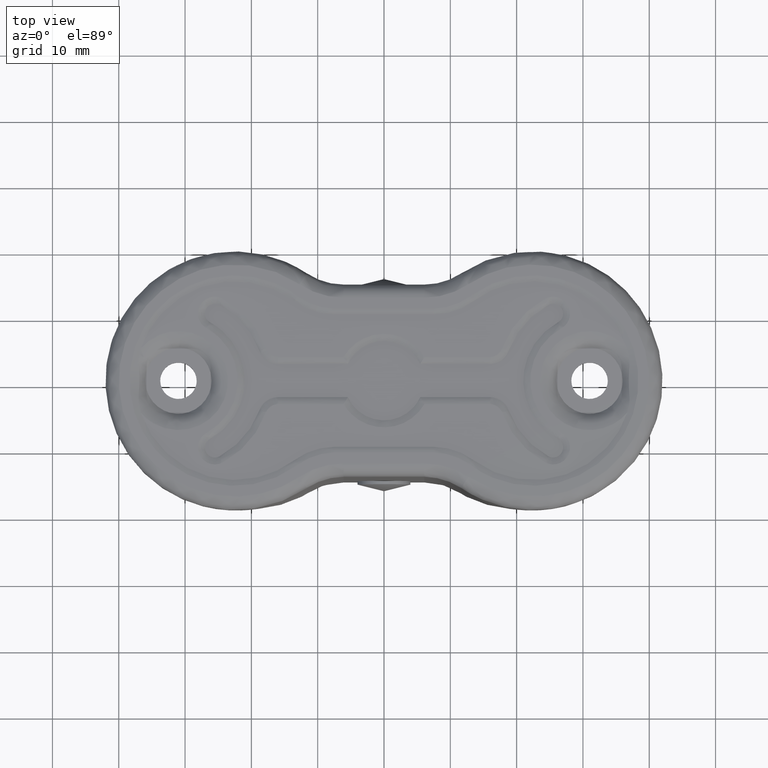
[diagram: clean part render]
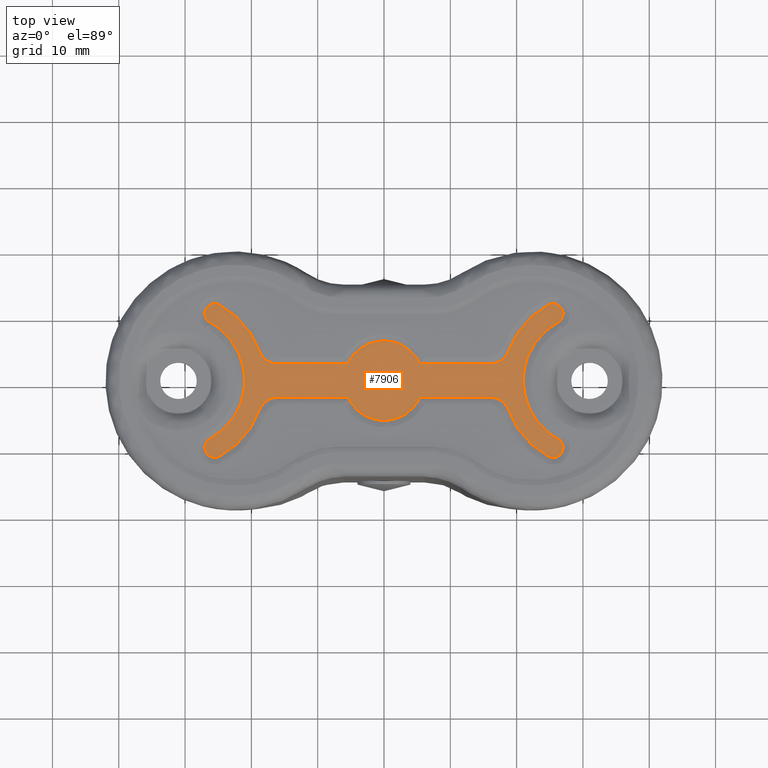
[diagram: same view with one face highlighted and labeled with its STEP entity id]
A machine part, top view. The second image highlights one B-rep face of the part: STEP entity #7906.
In plain terms, the highlighted face is a freeform B-spline surface patch.
Its self-contained STEP definition (entity closure, byte-faithful):
#6530=CARTESIAN_POINT('',(-15.975021000000201,-2.499999999999885,-0.499999999999945));
#6531=VERTEX_POINT('',#6530);
#6545=CARTESIAN_POINT('',(-18.792204415471549,-4.468750045187935,-0.499999999999945));
#6546=VERTEX_POINT('',#6545);
#6547=CARTESIAN_POINT('',(-15.975021000000201,-2.499999999999889,-0.499999999999945));
#6548=CARTESIAN_POINT('',(-18.071529710076202,-2.499999999999889,-0.499999999999945));
#6549=CARTESIAN_POINT('',(-18.792204415471549,-4.468750045187935,-0.499999999999945));
#6557=(BOUNDED_CURVE()B_SPLINE_CURVE(2,(#6547,#6548,#6549),.UNSPECIFIED.,.F.,.U.)CURVE()GEOMETRIC_REPRESENTATION_ITEM()QUASI_UNIFORM_CURVE()RATIONAL_B_SPLINE_CURVE((1.0,0.819679817550479,1.0))REPRESENTATION_ITEM(''));
#6558=EDGE_CURVE('',#6531,#6546,#6557,.T.);
#6608=CARTESIAN_POINT('',(-24.782608698924300,-11.416831732872399,-0.499999999999945));
#6609=VERTEX_POINT('',#6608);
#6639=CARTESIAN_POINT('',(-24.782608698924300,-11.416831732872399,-0.499999999999945));
#6640=CARTESIAN_POINT('',(-20.477356396820230,-9.072272441639816,-0.499999999999945));
#6641=CARTESIAN_POINT('',(-18.792204415471531,-4.468750045187944,-0.499999999999945));
#6649=(BOUNDED_CURVE()B_SPLINE_CURVE(2,(#6639,#6640,#6641),.UNSPECIFIED.,.F.,.U.)CURVE()GEOMETRIC_REPRESENTATION_ITEM()QUASI_UNIFORM_CURVE()RATIONAL_B_SPLINE_CURVE((1.0,0.935682532368448,1.0))REPRESENTATION_ITEM(''));
#6650=EDGE_CURVE('',#6609,#6546,#6649,.T.);
#6671=CARTESIAN_POINT('',(-5.454356000000099,-2.499999999999885,-0.499999999999945));
#6672=VERTEX_POINT('',#6671);
#6692=CARTESIAN_POINT('',(-15.975021000000201,-2.499999999999885,-0.499999999999945));
#6693=CARTESIAN_POINT('',(-5.454356000000099,-2.499999999999885,-0.499999999999945));
#6694=QUASI_UNIFORM_CURVE('',1,(#6692,#6693),.UNSPECIFIED.,.F.,.U.);
#6695=EDGE_CURVE('',#6531,#6672,#6694,.T.);
#6729=CARTESIAN_POINT('',(-26.217391326160602,-8.782178219150209,-0.499999999999945));
#6730=VERTEX_POINT('',#6729);
#6764=CARTESIAN_POINT('',(-26.217391326160602,-8.782178219150209,-0.499999999999945));
#6765=CARTESIAN_POINT('',(-26.977950244537862,-9.196364327112828,-0.499999999999945));
#6766=CARTESIAN_POINT('',(-26.999534066274698,-10.062120724138950,-0.499999999999945));
#6767=CARTESIAN_POINT('',(-27.021117888011542,-10.927877121165059,-0.499999999999945));
#6768=CARTESIAN_POINT('',(-26.282142765474589,-11.379447457462620,-0.499999999999945));
#6769=CARTESIAN_POINT('',(-25.543167642937629,-11.831017793760187,-0.499999999999945));
#6770=CARTESIAN_POINT('',(-24.782608698924300,-11.416831732872399,-0.499999999999945));
#6778=(BOUNDED_CURVE()B_SPLINE_CURVE(2,(#6764,#6765,#6766,#6767,#6768,#6769,#6770),.UNSPECIFIED.,.F.,.U.)B_SPLINE_CURVE_WITH_KNOTS((3,2,2,3),(0.0,0.333333333333333,0.666666666666667,1.0),.UNSPECIFIED.)CURVE()GEOMETRIC_REPRESENTATION_ITEM()RATIONAL_B_SPLINE_CURVE((1.0,0.866025403733573,1.0,0.866025403733573,1.0,0.866025403733573,1.0))REPRESENTATION_ITEM(''));
#6779=EDGE_CURVE('',#6730,#6609,#6778,.T.);
#6809=CARTESIAN_POINT('',(5.454356072683910,-2.499999966475225,-0.499999999999945));
#6810=VERTEX_POINT('',#6809);
#6830=CARTESIAN_POINT('',(-5.454356000000099,-2.499999999999885,-0.499999999999945));
#6831=CARTESIAN_POINT('',(-3.850133661724979,-6.000000019494776,-0.499999999999945));
#6832=CARTESIAN_POINT('',(0.000000030380415,-6.0,-0.499999999999945));
#6833=CARTESIAN_POINT('',(3.850133722485808,-5.999999980505224,-0.499999999999945));
#6834=CARTESIAN_POINT('',(5.454356072683912,-2.499999966475225,-0.499999999999945));
#6842=(BOUNDED_CURVE()B_SPLINE_CURVE(2,(#6830,#6831,#6832,#6833,#6834),.UNSPECIFIED.,.F.,.U.)B_SPLINE_CURVE_WITH_KNOTS((3,2,3),(0.0,0.500000000000000,1.0),.UNSPECIFIED.)CURVE()GEOMETRIC_REPRESENTATION_ITEM()RATIONAL_B_SPLINE_CURVE((1.0,0.841625411237724,1.0,0.841625411237724,1.0))REPRESENTATION_ITEM(''));
#6843=EDGE_CURVE('',#6672,#6810,#6842,.T.);
#6887=CARTESIAN_POINT('',(-26.217391301076098,8.782178267127490,-0.499999999999945));
#6888=VERTEX_POINT('',#6887);
#6920=CARTESIAN_POINT('',(-26.217391326160609,-8.782178219150204,-0.499999999999945));
#6921=CARTESIAN_POINT('',(-20.999999999727905,-5.940885274513746,-0.499999999999945));
#6922=CARTESIAN_POINT('',(-21.0,4.579969E-010,-0.499999999999945));
#6923=CARTESIAN_POINT('',(-21.000000000272088,5.940885275429739,-0.499999999999945));
#6924=CARTESIAN_POINT('',(-26.217391301076098,8.782178267127490,-0.499999999999945));
#6932=(BOUNDED_CURVE()B_SPLINE_CURVE(2,(#6920,#6921,#6922,#6923,#6924),.UNSPECIFIED.,.F.,.U.)B_SPLINE_CURVE_WITH_KNOTS((3,2,3),(0.0,0.500000000000000,1.0),.UNSPECIFIED.)CURVE()GEOMETRIC_REPRESENTATION_ITEM()RATIONAL_B_SPLINE_CURVE((1.0,0.859726952975105,1.0,0.859726952975105,1.0))REPRESENTATION_ITEM(''));
#6933=EDGE_CURVE('',#6730,#6888,#6932,.T.);
#6954=CARTESIAN_POINT('',(15.975020999999900,-2.499999999999885,-0.499999999999945));
#6955=VERTEX_POINT('',#6954);
#6969=CARTESIAN_POINT('',(5.454356072683910,-2.499999966475225,-0.499999999999945));
#6970=CARTESIAN_POINT('',(15.975020999999900,-2.499999999999885,-0.499999999999945));
#6971=QUASI_UNIFORM_CURVE('',1,(#6969,#6970),.UNSPECIFIED.,.F.,.U.);
#6972=EDGE_CURVE('',#6810,#6955,#6971,.T.);
#7006=CARTESIAN_POINT('',(-24.782608698924300,11.416831732872540,-0.499999999999945));
#7007=VERTEX_POINT('',#7006);
#7039=CARTESIAN_POINT('',(-24.782608698924300,11.416831732872540,-0.499999999999945));
#7040=CARTESIAN_POINT('',(-26.099935431796705,12.134223033948304,-0.499999999999945));
#7041=CARTESIAN_POINT('',(-26.817326732872530,10.816896301075930,-0.499999999999945));
#7042=CARTESIAN_POINT('',(-27.534718033948355,9.499569568203548,-0.499999999999945));
#7043=CARTESIAN_POINT('',(-26.217391301076059,8.782178267127572,-0.499999999999945));
#7051=(BOUNDED_CURVE()B_SPLINE_CURVE(2,(#7039,#7040,#7041,#7042,#7043),.UNSPECIFIED.,.F.,.U.)B_SPLINE_CURVE_WITH_KNOTS((3,2,3),(0.0,0.500000000000000,1.0),.UNSPECIFIED.)CURVE()GEOMETRIC_REPRESENTATION_ITEM()RATIONAL_B_SPLINE_CURVE((1.0,0.707106781186589,1.0,0.707106781186589,1.0))REPRESENTATION_ITEM(''));
#7052=EDGE_CURVE('',#7007,#6888,#7051,.T.);
#7092=CARTESIAN_POINT('',(18.792204596429549,-4.468749989571904,-0.499999999999945));
#7093=VERTEX_POINT('',#7092);
#7107=CARTESIAN_POINT('',(18.792204596429549,-4.468749989571905,-0.499999999999945));
#7108=CARTESIAN_POINT('',(18.071529717501068,-2.499999999999890,-0.499999999999945));
#7109=CARTESIAN_POINT('',(15.975020999999900,-2.499999999999889,-0.499999999999945));
#7117=(BOUNDED_CURVE()B_SPLINE_CURVE(2,(#7107,#7108,#7109),.UNSPECIFIED.,.F.,.U.)CURVE()GEOMETRIC_REPRESENTATION_ITEM()QUASI_UNIFORM_CURVE()RATIONAL_B_SPLINE_CURVE((1.0,0.819679816597919,1.0))REPRESENTATION_ITEM(''));
#7118=EDGE_CURVE('',#7093,#6955,#7117,.T.);
#7154=CARTESIAN_POINT('',(-18.792204596429851,4.468749989572130,-0.499999999999945));
#7155=VERTEX_POINT('',#7154);
#7185=CARTESIAN_POINT('',(-18.792204596429851,4.468749989572130,-0.499999999999945));
#7186=CARTESIAN_POINT('',(-20.477356401824601,9.072272444365131,-0.499999999999945));
#7187=CARTESIAN_POINT('',(-24.782608698924300,11.416831732872540,-0.499999999999945));
#7195=(BOUNDED_CURVE()B_SPLINE_CURVE(2,(#7185,#7186,#7187),.UNSPECIFIED.,.F.,.U.)CURVE()GEOMETRIC_REPRESENTATION_ITEM()QUASI_UNIFORM_CURVE()RATIONAL_B_SPLINE_CURVE((1.0,0.935682532503854,1.0))REPRESENTATION_ITEM(''));
#7196=EDGE_CURVE('',#7155,#7007,#7195,.T.);
#7220=CARTESIAN_POINT('',(24.782608724008849,-11.416831684895280,-0.499999999999945));
#7221=VERTEX_POINT('',#7220);
#7235=CARTESIAN_POINT('',(18.792204596429549,-4.468749989571904,-0.499999999999945));
#7236=CARTESIAN_POINT('',(20.477356401644627,-9.072272443873823,-0.499999999999945));
#7237=CARTESIAN_POINT('',(24.782608724008838,-11.416831684895291,-0.499999999999945));
#7245=(BOUNDED_CURVE()B_SPLINE_CURVE(2,(#7235,#7236,#7237),.UNSPECIFIED.,.F.,.U.)CURVE()GEOMETRIC_REPRESENTATION_ITEM()QUASI_UNIFORM_CURVE()RATIONAL_B_SPLINE_CURVE((1.0,0.935682532516280,1.0))REPRESENTATION_ITEM(''));
#7246=EDGE_CURVE('',#7093,#7221,#7245,.T.);
#7298=CARTESIAN_POINT('',(-15.975021000000201,2.500000000000115,-0.499999999999945));
#7299=VERTEX_POINT('',#7298);
#7329=CARTESIAN_POINT('',(-18.792204596429851,4.468749989572130,-0.499999999999945));
#7330=CARTESIAN_POINT('',(-18.071529717501374,2.500000000000110,-0.499999999999945));
#7331=CARTESIAN_POINT('',(-15.975021000000201,2.500000000000110,-0.499999999999945));
#7339=(BOUNDED_CURVE()B_SPLINE_CURVE(2,(#7329,#7330,#7331),.UNSPECIFIED.,.F.,.U.)CURVE()GEOMETRIC_REPRESENTATION_ITEM()QUASI_UNIFORM_CURVE()RATIONAL_B_SPLINE_CURVE((1.0,0.819679816597918,1.0))REPRESENTATION_ITEM(''));
#7340=EDGE_CURVE('',#7155,#7299,#7339,.T.);
#7370=CARTESIAN_POINT('',(26.217391301075899,-8.782178267127351,-0.499999999999945));
#7371=VERTEX_POINT('',#7370);
#7385=CARTESIAN_POINT('',(24.782608724008849,-11.416831684895280,-0.499999999999945));
#7386=CARTESIAN_POINT('',(25.543167641880409,-11.831017793786561,-0.499999999999945));
#7387=CARTESIAN_POINT('',(26.282142764693109,-11.379447457940170,-0.499999999999945));
#7388=CARTESIAN_POINT('',(27.021117887505795,-10.927877122093779,-0.499999999999945));
#7389=CARTESIAN_POINT('',(26.999534066297532,-10.062120725054459,-0.499999999999945));
#7390=CARTESIAN_POINT('',(26.977950245089254,-9.196364328015138,-0.499999999999945));
#7391=CARTESIAN_POINT('',(26.217391301075899,-8.782178267127348,-0.499999999999945));
#7399=(BOUNDED_CURVE()B_SPLINE_CURVE(2,(#7385,#7386,#7387,#7388,#7389,#7390,#7391),.UNSPECIFIED.,.F.,.U.)B_SPLINE_CURVE_WITH_KNOTS((3,2,2,3),(0.0,0.333333333333333,0.666666666666667,1.0),.UNSPECIFIED.)CURVE()GEOMETRIC_REPRESENTATION_ITEM()RATIONAL_B_SPLINE_CURVE((1.0,0.866025403733566,1.0,0.866025403733566,1.0,0.866025403733566,1.0))REPRESENTATION_ITEM(''));
#7400=EDGE_CURVE('',#7221,#7371,#7399,.T.);
#7445=CARTESIAN_POINT('',(-5.454356072683920,2.499999966475220,-0.499999999999945));
#7446=VERTEX_POINT('',#7445);
#7447=CARTESIAN_POINT('',(-5.454356072683920,2.499999966475220,-0.499999999999945));
#7448=CARTESIAN_POINT('',(-15.975021000000201,2.500000000000115,-0.499999999999945));
#7449=QUASI_UNIFORM_CURVE('',1,(#7447,#7448),.UNSPECIFIED.,.F.,.U.);
#7450=EDGE_CURVE('',#7446,#7299,#7449,.T.);
#7499=CARTESIAN_POINT('',(26.217391326160651,8.782178219150220,-0.499999999999945));
#7500=VERTEX_POINT('',#7499);
#7514=CARTESIAN_POINT('',(26.217391326160651,8.782178219150223,-0.499999999999945));
#7515=CARTESIAN_POINT('',(20.999999999727997,5.940885274513822,-0.499999999999945));
#7516=CARTESIAN_POINT('',(21.0,-4.578535E-010,-0.499999999999945));
#7517=CARTESIAN_POINT('',(21.000000000272010,-5.940885275429531,-0.499999999999945));
#7518=CARTESIAN_POINT('',(26.217391301075899,-8.782178267127351,-0.499999999999945));
#7526=(BOUNDED_CURVE()B_SPLINE_CURVE(2,(#7514,#7515,#7516,#7517,#7518),.UNSPECIFIED.,.F.,.U.)B_SPLINE_CURVE_WITH_KNOTS((3,2,3),(0.0,0.500000000000000,1.0),.UNSPECIFIED.)CURVE()GEOMETRIC_REPRESENTATION_ITEM()RATIONAL_B_SPLINE_CURVE((1.0,0.859726952975107,1.0,0.859726952975107,1.0))REPRESENTATION_ITEM(''));
#7527=EDGE_CURVE('',#7500,#7371,#7526,.T.);
#7589=CARTESIAN_POINT('',(5.454356000000000,2.500000000000115,-0.499999999999945));
#7590=VERTEX_POINT('',#7589);
#7591=CARTESIAN_POINT('',(5.454356000000000,2.500000000000115,-0.499999999999945));
#7592=CARTESIAN_POINT('',(3.850133661724768,6.000000019494856,-0.499999999999945));
#7593=CARTESIAN_POINT('',(-0.000000030380540,6.0,-0.499999999999945));
#7594=CARTESIAN_POINT('',(-3.850133722485848,5.999999980505145,-0.499999999999945));
#7595=CARTESIAN_POINT('',(-5.454356072683914,2.499999966475221,-0.499999999999945));
#7603=(BOUNDED_CURVE()B_SPLINE_CURVE(2,(#7591,#7592,#7593,#7594,#7595),.UNSPECIFIED.,.F.,.U.)B_SPLINE_CURVE_WITH_KNOTS((3,2,3),(0.0,0.500000000000000,1.0),.UNSPECIFIED.)CURVE()GEOMETRIC_REPRESENTATION_ITEM()RATIONAL_B_SPLINE_CURVE((1.0,0.841625411237730,1.0,0.841625411237730,1.0))REPRESENTATION_ITEM(''));
#7604=EDGE_CURVE('',#7590,#7446,#7603,.T.);
#7653=CARTESIAN_POINT('',(24.782608698924101,11.416831732872559,-0.499999999999945));
#7654=VERTEX_POINT('',#7653);
#7668=CARTESIAN_POINT('',(26.217391326160651,8.782178219150220,-0.499999999999945));
#7669=CARTESIAN_POINT('',(26.977950244537883,9.196364327112971,-0.499999999999945));
#7670=CARTESIAN_POINT('',(26.999534066274709,10.062120724139129,-0.499999999999945));
#7671=CARTESIAN_POINT('',(27.021117888011528,10.927877121165285,-0.499999999999945));
#7672=CARTESIAN_POINT('',(26.282142765474500,11.379447457462820,-0.499999999999945));
#7673=CARTESIAN_POINT('',(25.543167642937469,11.831017793760353,-0.499999999999945));
#7674=CARTESIAN_POINT('',(24.782608698924101,11.416831732872559,-0.499999999999945));
#7682=(BOUNDED_CURVE()B_SPLINE_CURVE(2,(#7668,#7669,#7670,#7671,#7672,#7673,#7674),.UNSPECIFIED.,.F.,.U.)B_SPLINE_CURVE_WITH_KNOTS((3,2,2,3),(0.0,0.333333333333333,0.666666666666667,1.0),.UNSPECIFIED.)CURVE()GEOMETRIC_REPRESENTATION_ITEM()RATIONAL_B_SPLINE_CURVE((1.0,0.866025403733562,1.0,0.866025403733562,1.0,0.866025403733562,1.0))REPRESENTATION_ITEM(''));
#7683=EDGE_CURVE('',#7500,#7654,#7682,.T.);
#7720=CARTESIAN_POINT('',(15.975020999999900,2.500000000000115,-0.499999999999945));
#7721=VERTEX_POINT('',#7720);
#7743=CARTESIAN_POINT('',(15.975020999999900,2.500000000000115,-0.499999999999945));
#7744=CARTESIAN_POINT('',(5.454356000000000,2.500000000000115,-0.499999999999945));
#7745=QUASI_UNIFORM_CURVE('',1,(#7743,#7744),.UNSPECIFIED.,.F.,.U.);
#7746=EDGE_CURVE('',#7721,#7590,#7745,.T.);
#7770=CARTESIAN_POINT('',(18.792204415471549,4.468750045187930,-0.499999999999945));
#7771=VERTEX_POINT('',#7770);
#7785=CARTESIAN_POINT('',(24.782608698924101,11.416831732872559,-0.499999999999945));
#7786=CARTESIAN_POINT('',(20.477356396820213,9.072272441639768,-0.499999999999945));
#7787=CARTESIAN_POINT('',(18.792204415471531,4.468750045187946,-0.499999999999945));
#7795=(BOUNDED_CURVE()B_SPLINE_CURVE(2,(#7785,#7786,#7787),.UNSPECIFIED.,.F.,.U.)CURVE()GEOMETRIC_REPRESENTATION_ITEM()QUASI_UNIFORM_CURVE()RATIONAL_B_SPLINE_CURVE((1.0,0.935682532368449,1.0))REPRESENTATION_ITEM(''));
#7796=EDGE_CURVE('',#7654,#7771,#7795,.T.);
#7849=CARTESIAN_POINT('',(15.975020999999900,2.500000000000110,-0.499999999999945));
#7850=CARTESIAN_POINT('',(18.071529710075826,2.500000000000110,-0.499999999999945));
#7851=CARTESIAN_POINT('',(18.792204415471549,4.468750045187930,-0.499999999999945));
#7859=(BOUNDED_CURVE()B_SPLINE_CURVE(2,(#7849,#7850,#7851),.UNSPECIFIED.,.F.,.U.)CURVE()GEOMETRIC_REPRESENTATION_ITEM()QUASI_UNIFORM_CURVE()RATIONAL_B_SPLINE_CURVE((1.0,0.819679817550490,1.0))REPRESENTATION_ITEM(''));
#7860=EDGE_CURVE('',#7721,#7771,#7859,.T.);
#7879=CARTESIAN_POINT('',(-29.696788011712268,12.757783049190680,-0.500000000000000));
#7880=CARTESIAN_POINT('',(29.696788011712268,12.757783049190680,-0.500000000000000));
#7881=CARTESIAN_POINT('',(-29.696788011712268,-12.757782882273871,-0.500000000000000));
#7882=CARTESIAN_POINT('',(29.696788011712268,-12.757782882273871,-0.500000000000000));
#7883=B_SPLINE_SURFACE_WITH_KNOTS('',1,1,((#7879,#7881),(#7880,#7882)),.UNSPECIFIED.,.F.,.F.,.U.,(2,2),(2,2),(0.0,59.393576023424536),(0.0,25.515565931464550),.UNSPECIFIED.);
#7884=ORIENTED_EDGE('',*,*,#7196,.T.);
#7885=ORIENTED_EDGE('',*,*,#7052,.T.);
#7886=ORIENTED_EDGE('',*,*,#6933,.F.);
#7887=ORIENTED_EDGE('',*,*,#6779,.T.);
#7888=ORIENTED_EDGE('',*,*,#6650,.T.);
#7889=ORIENTED_EDGE('',*,*,#6558,.F.);
#7890=ORIENTED_EDGE('',*,*,#6695,.T.);
#7891=ORIENTED_EDGE('',*,*,#6843,.T.);
#7892=ORIENTED_EDGE('',*,*,#6972,.T.);
#7893=ORIENTED_EDGE('',*,*,#7118,.F.);
#7894=ORIENTED_EDGE('',*,*,#7246,.T.);
#7895=ORIENTED_EDGE('',*,*,#7400,.T.);
#7896=ORIENTED_EDGE('',*,*,#7527,.F.);
#7897=ORIENTED_EDGE('',*,*,#7683,.T.);
#7898=ORIENTED_EDGE('',*,*,#7796,.T.);
#7899=ORIENTED_EDGE('',*,*,#7860,.F.);
#7900=ORIENTED_EDGE('',*,*,#7746,.T.);
#7901=ORIENTED_EDGE('',*,*,#7604,.T.);
#7902=ORIENTED_EDGE('',*,*,#7450,.T.);
#7903=ORIENTED_EDGE('',*,*,#7340,.F.);
#7904=EDGE_LOOP('',(#7884,#7885,#7886,#7887,#7888,#7889,#7890,#7891,#7892,#7893,#7894,#7895,#7896,#7897,#7898,#7899,#7900,#7901,#7902,#7903));
#7905=FACE_OUTER_BOUND('',#7904,.T.);
#7906=ADVANCED_FACE('',(#7905),#7883,.F.);